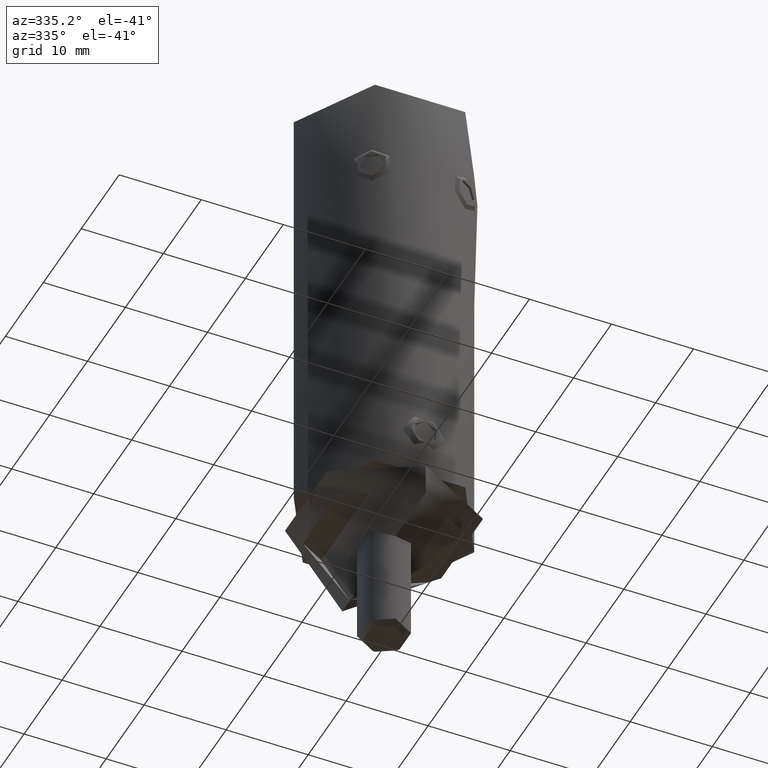
[diagram: clean part render]
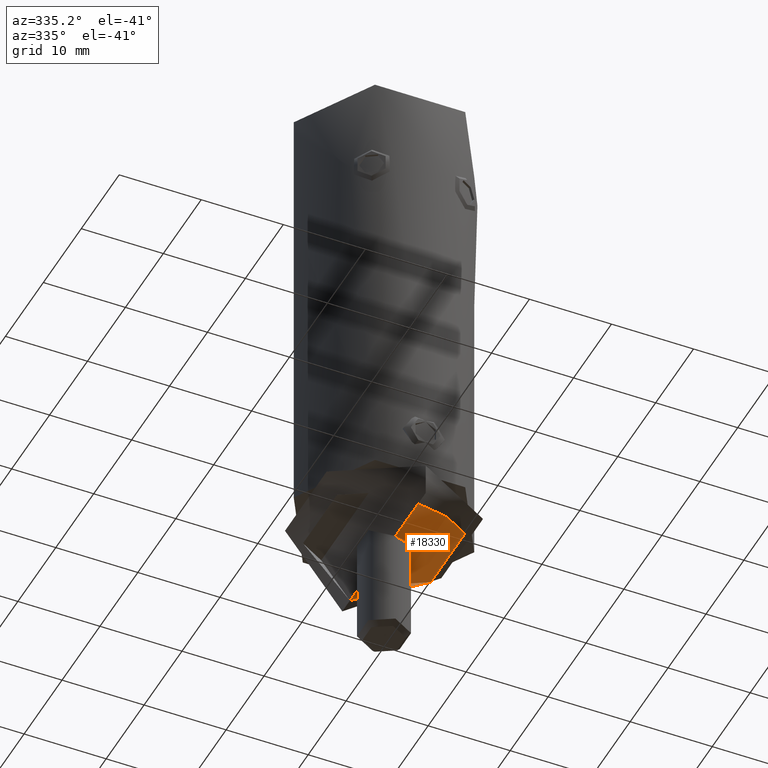
[diagram: same view with one face highlighted and labeled with its STEP entity id]
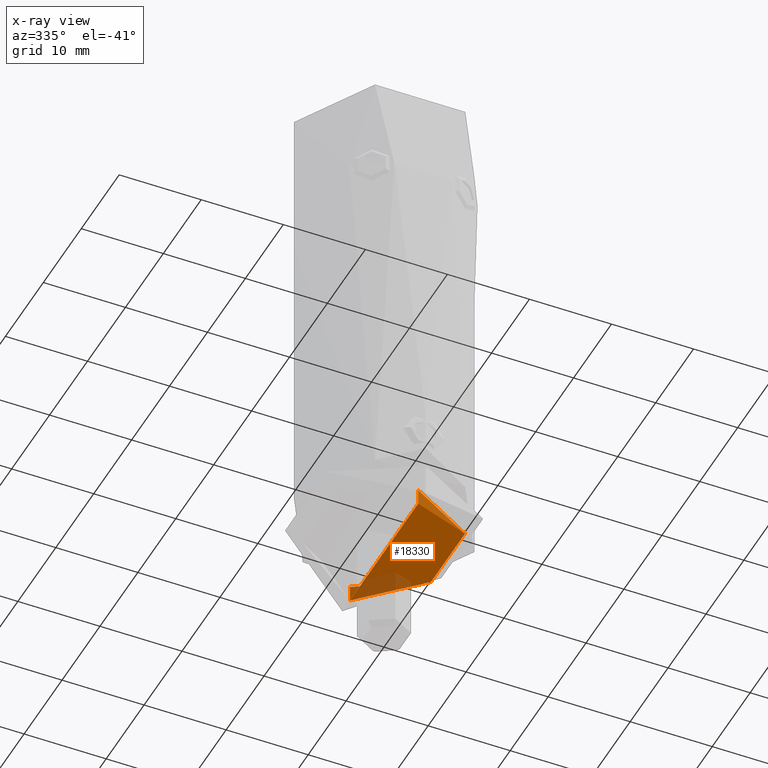
[diagram: x-ray of the same camera — body ghosted, the highlighted face saturated]
A machine part, auxiliary view. The second image highlights one B-rep face of the part: STEP entity #18330.
The next image is the same camera in x-ray: the body ghosted, the highlighted face saturated — about 15% of this face is hidden behind the body in this view.
In plain terms, the highlighted cylindrical surface (partial cylindrical patch) has radius 9 mm, axis along (0, 0, -1).
Its self-contained STEP definition (entity closure, byte-faithful):
#967 = VERTEX_POINT ( 'NONE', #5250 ) ;
#1113 = CARTESIAN_POINT ( 'NONE',  ( 8.985179175337009383, -0.5968560665887953087, -1.998238770381802976 ) ) ;
#1195 = CARTESIAN_POINT ( 'NONE',  ( 4.019336509877202701, 8.074508177015532695, -0.3770925065201886639 ) ) ;
#1259 = CARTESIAN_POINT ( 'NONE',  ( 8.532378343486362482, -2.922873668129471803, -1.791268359766135854 ) ) ;
#1330 = CARTESIAN_POINT ( 'NONE',  ( 2.923398892352811362, 8.532671750191319404, -0.1951843288773444651 ) ) ;
#1348 = DIRECTION ( 'NONE',  ( -0.000000000000000000, 1.224646799147353700E-16, -1.000000000000000000 ) ) ;
#2749 = VERTEX_POINT ( 'NONE', #19772 ) ;
#2761 = CARTESIAN_POINT ( 'NONE',  ( 8.706415660134126711, 2.357563003050737294, -1.869838397457704193 ) ) ;
#2842 = CARTESIAN_POINT ( 'NONE',  ( 7.636236501007306998, -4.772041448204879188, -1.422289563636392584 ) ) ;
#2909 = CARTESIAN_POINT ( 'NONE',  ( 0.3009189647580829963, 9.000000000000005329, 3.484905303241005959E-15 ) ) ;
#3250 = EDGE_CURVE ( 'NONE', #15135, #2749, #12979, .T. ) ;
#3454 = EDGE_LOOP ( 'NONE', ( #18291, #19331, #15397, #8358 ) ) ;
#3565 = LINE ( 'NONE', #6623, #7336 ) ;
#4261 = EDGE_CURVE ( 'NONE', #2749, #11509, #11140, .T. ) ;
#4422 = CARTESIAN_POINT ( 'NONE',  ( 5.492841792478553309, 7.135380700782324226, -0.7226140274287801146 ) ) ;
#4501 = CARTESIAN_POINT ( 'NONE',  ( 2.924552147243137501, -8.532053850704441444, -0.1954229079065395169 ) ) ;
#4575 = CARTESIAN_POINT ( 'NONE',  ( 0.5933654931180775138, -8.985391735092925103, -0.006214453234864026655 ) ) ;
#4645 = CARTESIAN_POINT ( 'NONE',  ( 8.704730878304369313, -2.362008123287462347, -1.869084275814925755 ) ) ;
#4720 = CARTESIAN_POINT ( 'NONE',  ( 8.080748568436819212, 4.005806101512836115, -1.598932007725406113 ) ) ;
#5250 = CARTESIAN_POINT ( 'NONE',  ( -2.400543471972580931E-16, 9.000000000000000000, -3.479268480956762563E-16 ) ) ;
#6240 = CARTESIAN_POINT ( 'NONE',  ( 2.360921398637980673, -8.705153755182525543, -0.1237501564019004852 ) ) ;
#6258 = CARTESIAN_POINT ( 'NONE',  ( 1.102158473084345979E-15, -9.000000000000000000, -1.062336755025038854E-15 ) ) ;
#6320 = CARTESIAN_POINT ( 'NONE',  ( 5.943050040245521970, 6.764992603206121835, -0.8487149436210477127 ) ) ;
#6571 = VECTOR ( 'NONE', #18422, 1000.000000000000000 ) ;
#6623 = CARTESIAN_POINT ( 'NONE',  ( 0.000000000000000000, 9.000000000000000000, 2.000000000000000000 ) ) ;
#7336 = VECTOR ( 'NONE', #1348, 1000.000000000000000 ) ;
#7450 = EDGE_CURVE ( 'NONE', #11509, #967, #22082, .T. ) ;
#7888 = CARTESIAN_POINT ( 'NONE',  ( 0.2964334490521094989, -8.999999999999998224, -1.469390405249397119E-15 ) ) ;
#7971 = CARTESIAN_POINT ( 'NONE',  ( 1.491460967790995351, 8.880471131629562365, -0.05053315862707175032 ) ) ;
#8043 = CARTESIAN_POINT ( 'NONE',  ( 5.259692949055501998, 7.308904753116187258, -0.6613222603714036252 ) ) ;
#8059 = DIRECTION ( 'NONE',  ( -0.000000000000000000, 1.224646799147353700E-16, -1.000000000000000000 ) ) ;
#8114 = CARTESIAN_POINT ( 'NONE',  ( 6.780744227032804439, 5.946691944771047567, -1.108980968700561398 ) ) ;
#8215 = CARTESIAN_POINT ( 'NONE',  ( 0.000000000000000000, -2.449293598294700991E-16, 1.999999999999998668 ) ) ;
#8358 = ORIENTED_EDGE ( 'NONE', *, *, #7450, .F. ) ;
#8427 = CYLINDRICAL_SURFACE ( 'NONE', #21472, 9.000000000000000000 ) ;
#8989 = AXIS2_PLACEMENT_3D ( 'NONE', #22273, #15604, #13846 ) ;
#9625 = CARTESIAN_POINT ( 'NONE',  ( 8.193363873119132279, -3.735633294600278820, -1.646896040208379430 ) ) ;
#9691 = CARTESIAN_POINT ( 'NONE',  ( 5.495492606631187549, -7.133337858995710157, -0.7233263029714096515 ) ) ;
#9761 = CARTESIAN_POINT ( 'NONE',  ( 5.945509795412032616, -6.762829383680997175, -0.8494344560948351441 ) ) ;
#9835 = CARTESIAN_POINT ( 'NONE',  ( 2.359948464335843266, 8.705144260624257058, -0.1237513485727931711 ) ) ;
#11140 = LINE ( 'NONE', #16621, #6571 ) ;
#11329 = CARTESIAN_POINT ( 'NONE',  ( 8.925628558626206299, -1.192827234166817352, -1.970485342432203302 ) ) ;
#11409 = CARTESIAN_POINT ( 'NONE',  ( 5.262191614882393509, -7.307129957256237596, -0.6619565563388677409 ) ) ;
#11490 = CARTESIAN_POINT ( 'NONE',  ( 1.486471490104404491, -8.881374637244260128, -0.05015444881013662176 ) ) ;
#11509 = VERTEX_POINT ( 'NONE', #6258 ) ;
#11558 = CARTESIAN_POINT ( 'NONE',  ( 4.528699389792132379, -7.783145565688805334, -0.4876673288471283785 ) ) ;
#11630 = CARTESIAN_POINT ( 'NONE',  ( 8.999905445151096473, -0.2995324990175464719, -2.005164705339572695 ) ) ;
#12914 = CARTESIAN_POINT ( 'NONE',  ( 1.102158473084345979E-15, -9.000000000000000000, -1.062336755025038854E-15 ) ) ;
#12979 = CIRCLE ( 'NONE', #8989, 9.000000000000000000 ) ;
#13210 = CARTESIAN_POINT ( 'NONE',  ( 1.198054577579933166, 8.924912206474559184, -0.03178508186405517438 ) ) ;
#13846 = DIRECTION ( 'NONE',  ( 0.000000000000000000, 1.000000000000000000, 1.445602896647339163E-16 ) ) ;
#14527 = CARTESIAN_POINT ( 'NONE',  ( 0.000000000000000000, 9.000000000000000000, 2.000000000000000000 ) ) ;
#14801 = CARTESIAN_POINT ( 'NONE',  ( 8.880688484592264231, -1.490378324176698133, -1.949609545792502008 ) ) ;
#14878 = CARTESIAN_POINT ( 'NONE',  ( 1.188250110291134698, -8.926220304075659584, -0.03123314677760595515 ) ) ;
#14897 = DIRECTION ( 'NONE',  ( 0.000000000000000000, 1.000000000000000000, 1.445602896647339163E-16 ) ) ;
#14951 = CARTESIAN_POINT ( 'NONE',  ( 3.742138319472860797, -8.190460172740545275, -0.3310585601990034266 ) ) ;
#15025 = CARTESIAN_POINT ( 'NONE',  ( 8.942269996938883025, 1.181348493133579813, -1.977808956071736679 ) ) ;
#15135 = VERTEX_POINT ( 'NONE', #14527 ) ;
#15397 = ORIENTED_EDGE ( 'NONE', *, *, #18425, .T. ) ;
#15604 = DIRECTION ( 'NONE',  ( -0.000000000000000000, 1.224646799147353700E-16, -1.000000000000000000 ) ) ;
#16548 = CARTESIAN_POINT ( 'NONE',  ( 7.787120209274810634, -4.521893375319817387, -1.481395017640133815 ) ) ;
#16620 = CARTESIAN_POINT ( 'NONE',  ( 7.149034228485853681, 5.498294302312310755, -1.238742662092879643 ) ) ;
#16621 = CARTESIAN_POINT ( 'NONE',  ( 1.102182119232617714E-15, -9.000000000000000000, 1.999999999999997335 ) ) ;
#16762 = CARTESIAN_POINT ( 'NONE',  ( 6.161153869097448776, 6.567007868193584841, -0.9138700709468928762 ) ) ;
#16794 = FACE_OUTER_BOUND ( 'NONE', #3454, .T. ) ;
#18201 = CARTESIAN_POINT ( 'NONE',  ( 6.163233675632005415, -6.565061745348237388, -0.9145015165310375060 ) ) ;
#18277 = CARTESIAN_POINT ( 'NONE',  ( 9.000187751502096489, 0.5905009705526840236, -2.005297072345205933 ) ) ;
#18291 = ORIENTED_EDGE ( 'NONE', *, *, #4261, .F. ) ;
#18330 = ADVANCED_FACE ( 'NONE', ( #16794 ), #8427, .F. ) ;
#18350 = CARTESIAN_POINT ( 'NONE',  ( 7.150489299978477931, -5.496221675087340053, -1.239282207627339538 ) ) ;
#18422 = DIRECTION ( 'NONE',  ( -0.000000000000000000, 1.224646799147353700E-16, -1.000000000000000000 ) ) ;
#18425 = EDGE_CURVE ( 'NONE', #15135, #967, #3565, .T. ) ;
#18493 = CARTESIAN_POINT ( 'NONE',  ( 0.6030836316957856047, 8.984747230574686938, -0.006488074780196557458 ) ) ;
#19331 = ORIENTED_EDGE ( 'NONE', *, *, #3250, .F. ) ;
#19772 = CARTESIAN_POINT ( 'NONE',  ( 1.102182119232617714E-15, -9.000000000000000000, 1.999999999999997335 ) ) ;
#19914 = CARTESIAN_POINT ( 'NONE',  ( 4.535962555106800131, 7.795054722870339958, -0.4849895838474947984 ) ) ;
#19986 = CARTESIAN_POINT ( 'NONE',  ( 4.010974858901455775, -8.062168054628074287, -0.3812122465098675139 ) ) ;
#20064 = CARTESIAN_POINT ( 'NONE',  ( 8.532837768163396674, 2.921585112813853691, -1.791469826741911353 ) ) ;
#20130 = CARTESIAN_POINT ( 'NONE',  ( -2.400543471972580931E-16, 9.000000000000000000, -3.479268480956762563E-16 ) ) ;
#21472 = AXIS2_PLACEMENT_3D ( 'NONE', #8215, #8059, #14897 ) ;
#21625 = CARTESIAN_POINT ( 'NONE',  ( 4.778794297280152925, -7.632033403245348957, -0.5441288213318566935 ) ) ;
#21770 = CARTESIAN_POINT ( 'NONE',  ( 8.066124459004576863, -4.003048471266065000, -1.593871881070151986 ) ) ;
#21843 = CARTESIAN_POINT ( 'NONE',  ( 6.782893369670294881, -5.944265957912700848, -1.109705084575130840 ) ) ;
#21913 = CARTESIAN_POINT ( 'NONE',  ( 7.798681730541693113, 4.529955176446843090, -1.483482858883813815 ) ) ;
#22082 = B_SPLINE_CURVE_WITH_KNOTS ( 'NONE', 3,
 ( #12914, #7888, #4575, #14878, #11490, #6240, #4501, #14951, #19986, #11558, #21625, #11409, #9691, #9761, #18201, #21843, #18350, #2842, #16548, #21770, #9625, #1259, #4645, #14801, #11329, #1113, #11630, #18277, #15025, #2761, #20064, #4720, #21913, #16620, #8114, #16762, #6320, #4422, #8043, #19914, #1195, #1330, #9835, #7971, #13210, #18493, #2909, #20130 ),
 .UNSPECIFIED., .F., .F.,
 ( 4, 2, 2, 2, 2, 2, 2, 2, 2, 2, 2, 2, 2, 2, 2, 2, 2, 2, 2, 2, 2, 2, 2, 4 ),
 ( 0.02848027258681560744, 0.02936949791033579421, 0.03025872323385598098, 0.03203717388089635104, 0.03292639920441653434, 0.03381562452793671764, 0.03470484985145690093, 0.03559407517497709117, 0.03737252582201745776, 0.03826175114553764800, 0.03915097646905783130, 0.04092942711609820483, 0.04181865243961838813, 0.04270787776313857143, 0.04448632841017894496, 0.04626477905721931849, 0.04804322970425968509, 0.04982168035130006556, 0.05071090567482024886, 0.05160013099834043215, 0.05337858164538079875, 0.05515703229242117922, 0.05604625761594136252, 0.05693548293946154581 ),
 .UNSPECIFIED. ) ;
#22273 = CARTESIAN_POINT ( 'NONE',  ( 0.000000000000000000, -2.449293598294701484E-16, 1.999999999999998668 ) ) ;